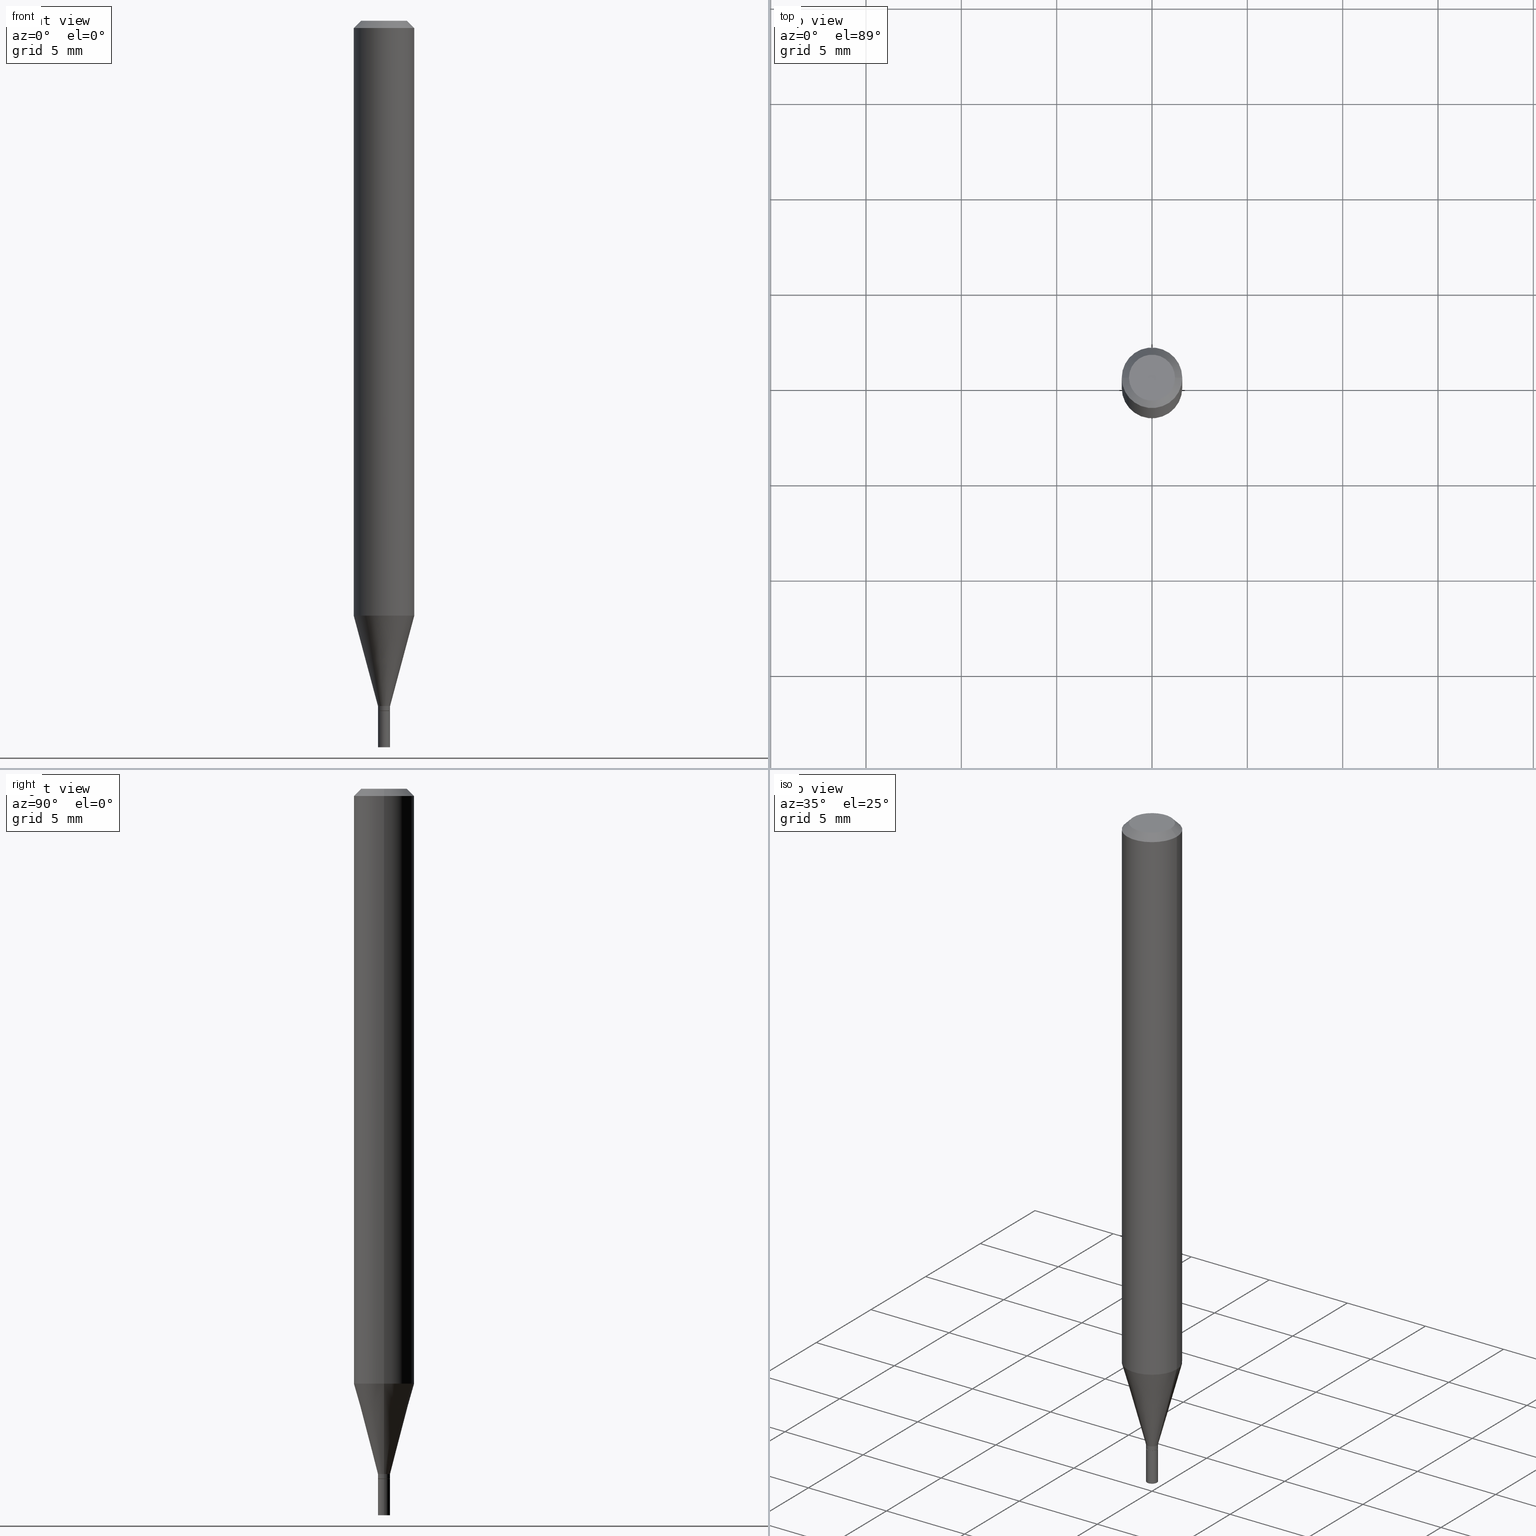
[diagram: canonical four-view strip — front | top / right | iso, engineering-drawing reading convention]
A machine part, canonical four-view strip (front | top / right | iso — engineering-drawing reading convention). The complete STEP part file that produces these views, byte-faithful:
ISO-10303-21;
HEADER;
FILE_DESCRIPTION (( 'STEP AP203' ),
    '1' );
FILE_NAME ('02295.STEP',
    '2024-03-18T20:02:27',
    ( '' ),
    ( '' ),
    'SwSTEP 2.0',
    'SolidWorks 2023',
    '' );
FILE_SCHEMA (( 'CONFIG_CONTROL_DESIGN' ));
ENDSEC;

DATA;
#1 = EDGE_LOOP ( 'NONE', ( #147, #62, #328, #219 ) ) ;
#2 = CARTESIAN_POINT ( 'NONE',  ( 8.728703347111317935E-17, 0.01249999999999502551, -1.425000000000000266 ) ) ;
#3 = PRODUCT_DEFINITION ( 'UNKNOWN', '', #61, #282 ) ;
#4 = CC_DESIGN_PERSON_AND_ORGANIZATION_ASSIGNMENT ( #235, #112, ( #61 ) ) ;
#5 = EDGE_CURVE ( 'NONE', #49, #14, #333, .T. ) ;
#6 = EDGE_LOOP ( 'NONE', ( #271, #164, #304, #22 ) ) ;
#7 = DIRECTION ( 'NONE',  ( 1.000000000000000000, -6.982962677686258822E-15, 0.000000000000000000 ) ) ;
#8 = VECTOR ( 'NONE', #121, 39.37007874015748143 ) ;
#9 = DIRECTION ( 'NONE',  ( 0.000000000000000000, 0.000000000000000000, 1.000000000000000000 ) ) ;
#10 = ORIENTED_EDGE ( 'NONE', *, *, #415, .F. ) ;
#11 = MECHANICAL_CONTEXT ( 'NONE', #310, 'mechanical' ) ;
#12 = LINE ( 'NONE', #30, #448 ) ;
#13 = PRODUCT_DEFINITION_SHAPE ( 'NONE', 'NONE',  #3 ) ;
#14 = VERTEX_POINT ( 'NONE', #153 ) ;
#15 = SECURITY_CLASSIFICATION_LEVEL ( 'unclassified' ) ;
#16 =( LENGTH_UNIT ( ) NAMED_UNIT ( * ) SI_UNIT ( $, .METRE. ) );
#17 = EDGE_CURVE ( 'NONE', #154, #258, #155, .T. ) ;
#18 = ORIENTED_EDGE ( 'NONE', *, *, #382, .F. ) ;
#19 = ORIENTED_EDGE ( 'NONE', *, *, #243, .F. ) ;
#20 = EDGE_CURVE ( 'NONE', #76, #345, #414, .T. ) ;
#21 = AXIS2_PLACEMENT_3D ( 'NONE', #65, #203, #437 ) ;
#22 = ORIENTED_EDGE ( 'NONE', *, *, #316, .F. ) ;
#23 = FACE_OUTER_BOUND ( 'NONE', #6, .T. ) ;
#24 = CARTESIAN_POINT ( 'NONE',  ( 0.06250000000000000000, -4.811533449433679005E-16, -0.01499999999999999944 ) ) ;
#25 = CIRCLE ( 'NONE', #192, 0.01249999999999992437 ) ;
#26 = LINE ( 'NONE', #126, #421 ) ;
#27 = EDGE_CURVE ( 'NONE', #222, #14, #456, .T. ) ;
#28 = EDGE_CURVE ( 'NONE', #252, #375, #125, .T. ) ;
#29 = AXIS2_PLACEMENT_3D ( 'NONE', #223, #168, #171 ) ;
#30 = CARTESIAN_POINT ( 'NONE',  ( -0.01249999999999992437, 8.881784197001198582E-17, -6.148668862818594743E-31 ) ) ;
#31 = DIRECTION ( 'NONE',  ( -0.7071067811865676678, 2.468850131082468081E-15, -0.7071067811865273667 ) ) ;
#32 = PLANE ( 'NONE',  #140 ) ;
#33 = EDGE_LOOP ( 'NONE', ( #364, #18 ) ) ;
#34 = DIRECTION ( 'NONE',  ( 1.000000000000000000, -6.982962677686266711E-15, 4.876176775795935793E-29 ) ) ;
#35 = AXIS2_PLACEMENT_3D ( 'NONE', #236, #383, #54 ) ;
#36 = EDGE_CURVE ( 'NONE', #222, #149, #117, .T. ) ;
#37 = AXIS2_PLACEMENT_3D ( 'NONE', #186, #224, #423 ) ;
#38 = APPROVAL_PERSON_ORGANIZATION ( #87, #377, #279 ) ;
#39 = CARTESIAN_POINT ( 'NONE',  ( 0.000000000000000000, 0.000000000000000000, 0.000000000000000000 ) ) ;
#40 = DIRECTION ( 'NONE',  ( -2.445468806185136597E-29, 3.491481338843145583E-15, 1.000000000000000000 ) ) ;
#41 = ORIENTED_EDGE ( 'NONE', *, *, #53, .T. ) ;
#42 = ORIENTED_EDGE ( 'NONE', *, *, #395, .T. ) ;
#43 = DIRECTION ( 'NONE',  ( 1.000000000000000000, -6.982962677686262766E-15, 0.000000000000000000 ) ) ;
#44 = DIRECTION ( 'NONE',  ( 1.000000000000000000, -6.982962677686266711E-15, 4.876176775795935793E-29 ) ) ;
#45 = CARTESIAN_POINT ( 'NONE',  ( 0.01200000000000000198, -5.059156459983718502E-15, -1.425000000000000266 ) ) ;
#46 = DIRECTION ( 'NONE',  ( -0.7071067811865642261, 7.493145998870414114E-15, 0.7071067811865309194 ) ) ;
#47 = FACE_OUTER_BOUND ( 'NONE', #96, .T. ) ;
#48 = DIRECTION ( 'NONE',  ( 1.000000000000000000, -6.982962677686294321E-15, 0.000000000000000000 ) ) ;
#49 = VERTEX_POINT ( 'NONE', #230 ) ;
#50 = ORIENTED_EDGE ( 'NONE', *, *, #58, .T. ) ;
#51 = CARTESIAN_POINT ( 'NONE',  ( -0.06250000000000000000, -1.726560303666755986E-15, -0.01499999999999999944 ) ) ;
#52 = CIRCLE ( 'NONE', #114, 0.01200000000000000198 ) ;
#53 = EDGE_CURVE ( 'NONE', #85, #428, #240, .T. ) ;
#54 = DIRECTION ( 'NONE',  ( 1.000000000000000000, -6.982962677686267499E-15, 4.876176775795935793E-29 ) ) ;
#55 = DIRECTION ( 'NONE',  ( -2.445468806185136597E-29, 3.491481338843145583E-15, 1.000000000000000000 ) ) ;
#56 = DIRECTION ( 'NONE',  ( -2.445468806185136597E-29, 3.491481338843145583E-15, 1.000000000000000000 ) ) ;
#57 = ORIENTED_EDGE ( 'NONE', *, *, #395, .F. ) ;
#58 = EDGE_CURVE ( 'NONE', #49, #363, #52, .T. ) ;
#59 = CIRCLE ( 'NONE', #233, 0.01250000000000000069 ) ;
#60 = ORIENTED_EDGE ( 'NONE', *, *, #162, .F. ) ;
#61 = PRODUCT_DEFINITION_FORMATION_WITH_SPECIFIED_SOURCE ( 'ANY', '', #116, .NOT_KNOWN. ) ;
#62 = ORIENTED_EDGE ( 'NONE', *, *, #417, .T. ) ;
#63 = DIRECTION ( 'NONE',  ( 1.000000000000000000, -6.982962677686265922E-15, 4.876176775795935793E-29 ) ) ;
#64 = ORIENTED_EDGE ( 'NONE', *, *, #27, .T. ) ;
#65 = CARTESIAN_POINT ( 'NONE',  ( 3.668203209277705088E-31, -5.237222008264718399E-17, -0.01499999999999999944 ) ) ;
#66 = PERSON_AND_ORGANIZATION ( #340, #287 ) ;
#67 = ORIENTED_EDGE ( 'NONE', *, *, #384, .T. ) ;
#68 = CARTESIAN_POINT ( 'NONE',  ( -0.06250000000000001388, -3.844837597100926719E-15, -1.228397459621556109 ) ) ;
#69 = AXIS2_PLACEMENT_3D ( 'NONE', #393, #198, #244 ) ;
#70 = CC_DESIGN_APPROVAL ( #377, ( #61 ) ) ;
#71 = PRODUCT_RELATED_PRODUCT_CATEGORY ( 'detail', '', ( #116 ) ) ;
#72 = ORIENTED_EDGE ( 'NONE', *, *, #28, .F. ) ;
#73 = CARTESIAN_POINT ( 'NONE',  ( 3.460338360751968441E-29, -4.940446094463050737E-15, -1.415000000000000036 ) ) ;
#74 = PERSON_AND_ORGANIZATION_ROLE ( 'design_supplier' ) ;
#75 = CARTESIAN_POINT ( 'NONE',  ( 3.484793048813820547E-29, -4.975360907851483175E-15, -1.425000000000000266 ) ) ;
#76 = VERTEX_POINT ( 'NONE', #51 ) ;
#77 = CYLINDRICAL_SURFACE ( 'NONE', #93, 0.06250000000000000000 ) ;
#78 = APPROVAL_ROLE ( '' ) ;
#79 = DIRECTION ( 'NONE',  ( -2.445468806185136597E-29, 3.491481338843145583E-15, 1.000000000000000000 ) ) ;
#80 = CIRCLE ( 'NONE', #397, 0.06250000000000000000 ) ;
#81 = LOCAL_TIME ( 16, 2, 27.00000000000000000, #103 ) ;
#82 = DIRECTION ( 'NONE',  ( 1.000000000000000000, -6.982962677686250144E-15, 0.000000000000000000 ) ) ;
#83 = CARTESIAN_POINT ( 'NONE',  ( 0.000000000000000000, 0.000000000000000000, 0.000000000000000000 ) ) ;
#84 = ORIENTED_EDGE ( 'NONE', *, *, #239, .T. ) ;
#85 = VERTEX_POINT ( 'NONE', #278 ) ;
#86 = ORIENTED_EDGE ( 'NONE', *, *, #188, .T. ) ;
#87 = PERSON_AND_ORGANIZATION ( #340, #287 ) ;
#88 = EDGE_CURVE ( 'NONE', #375, #253, #388, .T. ) ;
#89 = AXIS2_PLACEMENT_3D ( 'NONE', #127, #353, #248 ) ;
#90 = DIRECTION ( 'NONE',  ( 1.000000000000000000, -6.982962677686294321E-15, 0.000000000000000000 ) ) ;
#91 = CARTESIAN_POINT ( 'NONE',  ( 3.483570314410727746E-29, -4.973615167182062460E-15, -1.424500000000000322 ) ) ;
#92 = CARTESIAN_POINT ( 'NONE',  ( 3.004007669101581496E-29, -4.288926806950990124E-15, -1.228397459621556109 ) ) ;
#93 = AXIS2_PLACEMENT_3D ( 'NONE', #343, #213, #34 ) ;
#94 = FACE_OUTER_BOUND ( 'NONE', #296, .T. ) ;
#95 = CARTESIAN_POINT ( 'NONE',  ( 0.01250000000000000069, -8.728703347107834621E-17, 6.095220969744920617E-31 ) ) ;
#96 = EDGE_LOOP ( 'NONE', ( #334, #86, #19, #392 ) ) ;
#97 = PLANE ( 'NONE',  #167 ) ;
#98 = APPROVAL_DATE_TIME ( #211, #182 ) ;
#99 = CYLINDRICAL_SURFACE ( 'NONE', #205, 0.01249999999999992437 ) ;
#100 = EDGE_CURVE ( 'NONE', #85, #345, #229, .T. ) ;
#101 = CARTESIAN_POINT ( 'NONE',  ( -0.01250000000000000069, -5.017473616088089257E-15, -1.425000000000000266 ) ) ;
#102 = FACE_OUTER_BOUND ( 'NONE', #1, .T. ) ;
#103 = COORDINATED_UNIVERSAL_TIME_OFFSET ( 5, 0, .BEHIND. ) ;
#104 = EDGE_LOOP ( 'NONE', ( #64, #113, #60, #440 ) ) ;
#105 = DIRECTION ( 'NONE',  ( 1.000000000000000000, -6.982962677686266711E-15, 0.000000000000000000 ) ) ;
#106 = ORIENTED_EDGE ( 'NONE', *, *, #100, .T. ) ;
#107 = CARTESIAN_POINT ( 'NONE',  ( 0.01249999999999992437, -5.060902200653140005E-15, -1.424500000000000322 ) ) ;
#108 = DIRECTION ( 'NONE',  ( -2.445468806185136597E-29, 3.491481338843145583E-15, 1.000000000000000000 ) ) ;
#109 = DIRECTION ( 'NONE',  ( -2.445468806185136597E-29, 3.491481338843145583E-15, 1.000000000000000000 ) ) ;
#110 = EDGE_CURVE ( 'NONE', #206, #253, #419, .T. ) ;
#111 = ORIENTED_EDGE ( 'NONE', *, *, #36, .T. ) ;
#112 = PERSON_AND_ORGANIZATION_ROLE ( 'creator' ) ;
#113 = ORIENTED_EDGE ( 'NONE', *, *, #332, .T. ) ;
#114 = AXIS2_PLACEMENT_3D ( 'NONE', #350, #281, #82 ) ;
#115 = AXIS2_PLACEMENT_3D ( 'NONE', #92, #457, #124 ) ;
#116 = PRODUCT ( '02295', '02295', '', ( #11 ) ) ;
#117 = LINE ( 'NONE', #187, #8 ) ;
#118 = CARTESIAN_POINT ( 'NONE',  ( 0.01200000000000000198, -5.059156459983718502E-15, -1.425000000000000266 ) ) ;
#119 = AXIS2_PLACEMENT_3D ( 'NONE', #441, #265, #220 ) ;
#120 = AXIS2_PLACEMENT_3D ( 'NONE', #306, #79, #329 ) ;
#121 = DIRECTION ( 'NONE',  ( -2.445468806185136877E-29, 3.491481338843145188E-15, 1.000000000000000000 ) ) ;
#122 = DIRECTION ( 'NONE',  ( 1.000000000000000000, -6.982962677686266711E-15, 0.000000000000000000 ) ) ;
#123 = DIRECTION ( 'NONE',  ( -2.445468806185136597E-29, 3.491481338843145583E-15, 1.000000000000000000 ) ) ;
#124 = DIRECTION ( 'NONE',  ( 1.000000000000000000, -6.982962677686262766E-15, 0.000000000000000000 ) ) ;
#125 = LINE ( 'NONE', #95, #346 ) ;
#126 = CARTESIAN_POINT ( 'NONE',  ( 0.06250000000000000000, -4.364351673553916694E-16, 3.047610484872459871E-30 ) ) ;
#127 = CARTESIAN_POINT ( 'NONE',  ( 3.668203209277704895E-29, -5.237222008264718177E-15, -1.500000000000000222 ) ) ;
#128 = ADVANCED_FACE ( 'NONE', ( #322 ), #166, .T. ) ;
#129 = CARTESIAN_POINT ( 'NONE',  ( -0.06250000000000000000, 3.840629472727444916E-16, -0.01499999999999999944 ) ) ;
#130 = VECTOR ( 'NONE', #376, 39.37007874015748143 ) ;
#131 = ADVANCED_BREP_SHAPE_REPRESENTATION ( '02295', ( #442, #288, #163 ), #277 ) ;
#132 = CARTESIAN_POINT ( 'NONE',  ( 3.668203209277705088E-31, -5.237222008264718399E-17, -0.01499999999999999944 ) ) ;
#133 = APPROVAL_DATE_TIME ( #465, #377 ) ;
#134 = EDGE_LOOP ( 'NONE', ( #273, #250, #199, #207 ) ) ;
#135 = DIRECTION ( 'NONE',  ( -1.000000000000000000, 6.982962677686265922E-15, -4.876176775795935793E-29 ) ) ;
#136 = CARTESIAN_POINT ( 'NONE',  ( 3.316907271900976096E-16, 0.04749999999999999362, -5.911810482194846144E-16 ) ) ;
#137 = EDGE_LOOP ( 'NONE', ( #181, #50, #344, #369 ) ) ;
#138 = DIRECTION ( 'NONE',  ( -2.445468806185136877E-29, 3.491481338843145188E-15, 1.000000000000000000 ) ) ;
#139 = ADVANCED_FACE ( 'NONE', ( #102 ), #260, .T. ) ;
#140 = AXIS2_PLACEMENT_3D ( 'NONE', #431, #146, #266 ) ;
#141 = AXIS2_PLACEMENT_3D ( 'NONE', #246, #391, #195 ) ;
#142 = DIRECTION ( 'NONE',  ( 1.000000000000000000, 0.000000000000000000, 0.000000000000000000 ) ) ;
#143 = APPLICATION_CONTEXT ( 'configuration controlled 3d designs of mechanical parts and assemblies' ) ;
#144 = ORIENTED_EDGE ( 'NONE', *, *, #110, .F. ) ;
#145 = CARTESIAN_POINT ( 'NONE',  ( -0.01249999999999992437, -4.348232924796983019E-15, -1.415000000000000036 ) ) ;
#146 = DIRECTION ( 'NONE',  ( -2.438088387897960049E-29, 3.491481338843145188E-15, 1.000000000000000000 ) ) ;
#147 = ORIENTED_EDGE ( 'NONE', *, *, #188, .F. ) ;
#148 = PERSON_AND_ORGANIZATION ( #340, #287 ) ;
#149 = VERTEX_POINT ( 'NONE', #339 ) ;
#150 = CC_DESIGN_APPROVAL ( #285, ( #314 ) ) ;
#151 = EDGE_CURVE ( 'NONE', #252, #206, #59, .T. ) ;
#152 = APPLICATION_PROTOCOL_DEFINITION ( 'international standard', 'config_control_design', 1994, #310 ) ;
#153 = CARTESIAN_POINT ( 'NONE',  ( -0.01249999999999992437, -4.884797325212050253E-15, -1.424500000000000322 ) ) ;
#154 = VERTEX_POINT ( 'NONE', #145 ) ;
#155 = LINE ( 'NONE', #385, #299 ) ;
#156 = CARTESIAN_POINT ( 'NONE',  ( -0.01250000000000000069, 8.881784197001252816E-17, -6.148668862818633278E-31 ) ) ;
#157 = CIRCLE ( 'NONE', #115, 0.06250000000000000000 ) ;
#158 = DATE_AND_TIME ( #326, #81 ) ;
#159 = DIRECTION ( 'NONE',  ( -0.2588190451025211281, 5.211531920934548675E-15, 0.9659258262890682012 ) ) ;
#160 =( NAMED_UNIT ( * ) SI_UNIT ( $, .STERADIAN. ) SOLID_ANGLE_UNIT ( ) );
#161 = AXIS2_PLACEMENT_3D ( 'NONE', #254, #401, #43 ) ;
#162 = EDGE_CURVE ( 'NONE', #149, #154, #25, .T. ) ;
#163 = AXIS2_PLACEMENT_3D ( 'NONE', #39, #9, #142 ) ;
#164 = ORIENTED_EDGE ( 'NONE', *, *, #17, .T. ) ;
#165 = DIRECTION ( 'NONE',  ( -2.445468806185136877E-29, 3.491481338843145188E-15, 1.000000000000000000 ) ) ;
#166 = CYLINDRICAL_SURFACE ( 'NONE', #351, 0.01250000000000000069 ) ;
#167 = AXIS2_PLACEMENT_3D ( 'NONE', #251, #398, #63 ) ;
#168 = DIRECTION ( 'NONE',  ( -2.445468806185136597E-29, 3.491481338843145583E-15, 1.000000000000000000 ) ) ;
#169 = LOCAL_TIME ( 16, 2, 27.00000000000000000, #177 ) ;
#170 = EDGE_LOOP ( 'NONE', ( #362, #10, #67, #212 ) ) ;
#171 = DIRECTION ( 'NONE',  ( 1.000000000000000000, -6.982962677686250144E-15, 0.000000000000000000 ) ) ;
#172 = DIRECTION ( 'NONE',  ( 1.000000000000000000, -6.982962677686250144E-15, 0.000000000000000000 ) ) ;
#173 = EDGE_LOOP ( 'NONE', ( #238, #41 ) ) ;
#174 = ORIENTED_EDGE ( 'NONE', *, *, #317, .F. ) ;
#175 = CARTESIAN_POINT ( 'NONE',  ( 0.000000000000000000, 0.000000000000000000, 0.000000000000000000 ) ) ;
#176 = AXIS2_PLACEMENT_3D ( 'NONE', #75, #109, #172 ) ;
#177 = COORDINATED_UNIVERSAL_TIME_OFFSET ( 5, 0, .BEHIND. ) ;
#178 = EDGE_LOOP ( 'NONE', ( #144, #373, #300, #57 ) ) ;
#179 = CARTESIAN_POINT ( 'NONE',  ( 3.460338360751968441E-29, -4.940446094463050737E-15, -1.415000000000000036 ) ) ;
#180 = CARTESIAN_POINT ( 'NONE',  ( 3.484793048813820547E-29, -4.975360907851483175E-15, -1.425000000000000266 ) ) ;
#181 = ORIENTED_EDGE ( 'NONE', *, *, #5, .F. ) ;
#182 = APPROVAL ( #324, 'UNSPECIFIED' ) ;
#183 = ADVANCED_FACE ( 'NONE', ( #464 ), #99, .T. ) ;
#184 = CONICAL_SURFACE ( 'NONE', #176, 0.01200000000000000198, 0.7853981633974718157 ) ;
#185 = CIRCLE ( 'NONE', #347, 0.01250000000000000069 ) ;
#186 = CARTESIAN_POINT ( 'NONE',  ( 2.080290297812910479E-44, -2.970103211220577886E-30, -8.506713692488703374E-16 ) ) ;
#187 = CARTESIAN_POINT ( 'NONE',  ( 0.01249999999999992437, -8.728703347107781619E-17, 6.095220969744882957E-31 ) ) ;
#188 = EDGE_CURVE ( 'NONE', #258, #76, #370, .T. ) ;
#189 = CARTESIAN_POINT ( 'NONE',  ( 0.01250000000000000069, -5.062647941322562298E-15, -1.425000000000000266 ) ) ;
#190 = DIRECTION ( 'NONE',  ( 1.000000000000000000, -6.982962677686258822E-15, 0.000000000000000000 ) ) ;
#191 = CLOSED_SHELL ( 'NONE', ( #183, #349, #217, #234, #378, #302, #139, #210, #418, #319, #307, #367 ) ) ;
#192 = AXIS2_PLACEMENT_3D ( 'NONE', #179, #331, #7 ) ;
#193 = CARTESIAN_POINT ( 'NONE',  ( 3.668203209277705088E-31, -5.237222008264718399E-17, -0.01499999999999999944 ) ) ;
#194 = DIRECTION ( 'NONE',  ( 1.000000000000000000, -6.982962677686258822E-15, 0.000000000000000000 ) ) ;
#195 = DIRECTION ( 'NONE',  ( 1.000000000000000000, -6.982962677686258822E-15, 0.000000000000000000 ) ) ;
#196 = CC_DESIGN_PERSON_AND_ORGANIZATION_ASSIGNMENT ( #396, #432, ( #116 ) ) ;
#197 = AXIS2_PLACEMENT_3D ( 'NONE', #193, #123, #122 ) ;
#198 = DIRECTION ( 'NONE',  ( -2.445468806185136597E-29, 3.491481338843145583E-15, 1.000000000000000000 ) ) ;
#199 = ORIENTED_EDGE ( 'NONE', *, *, #316, .T. ) ;
#200 = COORDINATED_UNIVERSAL_TIME_OFFSET ( 5, 0, .BEHIND. ) ;
#201 = FACE_OUTER_BOUND ( 'NONE', #33, .T. ) ;
#202 = DIRECTION ( 'NONE',  ( 2.438088387897960049E-29, -3.491481338843145188E-15, -1.000000000000000000 ) ) ;
#203 = DIRECTION ( 'NONE',  ( 2.445468806185136597E-29, -3.491481338843145583E-15, -1.000000000000000000 ) ) ;
#204 = PERSON_AND_ORGANIZATION ( #340, #287 ) ;
#205 = AXIS2_PLACEMENT_3D ( 'NONE', #175, #429, #208 ) ;
#206 = VERTEX_POINT ( 'NONE', #301 ) ;
#207 = ORIENTED_EDGE ( 'NONE', *, *, #417, .F. ) ;
#208 = DIRECTION ( 'NONE',  ( 1.000000000000000000, -6.982962677686267499E-15, 4.876176775795935793E-29 ) ) ;
#209 = DATE_AND_TIME ( #214, #354 ) ;
#210 = ADVANCED_FACE ( 'NONE', ( #408 ), #268, .T. ) ;
#211 = DATE_AND_TIME ( #410, #361 ) ;
#212 = ORIENTED_EDGE ( 'NONE', *, *, #20, .T. ) ;
#213 = DIRECTION ( 'NONE',  ( -2.445468806185136597E-29, 3.491481338843145583E-15, 1.000000000000000000 ) ) ;
#214 = CALENDAR_DATE ( 2024, 18, 3 ) ;
#215 = DIRECTION ( 'NONE',  ( -2.445468806185136597E-29, 3.491481338843145583E-15, 1.000000000000000000 ) ) ;
#216 = LINE ( 'NONE', #438, #330 ) ;
#217 = ADVANCED_FACE ( 'NONE', ( #357 ), #424, .T. ) ;
#218 = CC_DESIGN_PERSON_AND_ORGANIZATION_ASSIGNMENT ( #262, #226, ( #314 ) ) ;
#219 = ORIENTED_EDGE ( 'NONE', *, *, #20, .F. ) ;
#220 = DIRECTION ( 'NONE',  ( -1.000000000000000000, 6.982962677686266711E-15, 0.000000000000000000 ) ) ;
#221 = DIRECTION ( 'NONE',  ( 0.7071067811865642261, -2.468850131082431399E-15, 0.7071067811865309194 ) ) ;
#222 = VERTEX_POINT ( 'NONE', #107 ) ;
#223 = CARTESIAN_POINT ( 'NONE',  ( 3.484793048813820547E-29, -4.975360907851483175E-15, -1.425000000000000266 ) ) ;
#224 = DIRECTION ( 'NONE',  ( -2.445468806185136597E-29, 3.491481338843145583E-15, 1.000000000000000000 ) ) ;
#225 = AXIS2_PLACEMENT_3D ( 'NONE', #180, #275, #90 ) ;
#226 = PERSON_AND_ORGANIZATION_ROLE ( 'classification_officer' ) ;
#227 = CIRCLE ( 'NONE', #141, 0.01249999999999992437 ) ;
#228 = ORIENTED_EDGE ( 'NONE', *, *, #450, .F. ) ;
#229 = LINE ( 'NONE', #24, #372 ) ;
#230 = CARTESIAN_POINT ( 'NONE',  ( -0.01200000000000000198, -4.887446552386159876E-15, -1.425000000000000266 ) ) ;
#231 = ORIENTED_EDGE ( 'NONE', *, *, #58, .F. ) ;
#232 = APPROVAL_STATUS ( 'not_yet_approved' ) ;
#233 = AXIS2_PLACEMENT_3D ( 'NONE', #443, #108, #263 ) ;
#234 = ADVANCED_FACE ( 'NONE', ( #47 ), #77, .T. ) ;
#235 = PERSON_AND_ORGANIZATION ( #340, #287 ) ;
#236 = CARTESIAN_POINT ( 'NONE',  ( 0.000000000000000000, 0.000000000000000000, 0.000000000000000000 ) ) ;
#237 = DIRECTION ( 'NONE',  ( 1.000000000000000000, -6.982962677686267499E-15, 4.876176775795936353E-29 ) ) ;
#238 = ORIENTED_EDGE ( 'NONE', *, *, #415, .T. ) ;
#239 = EDGE_CURVE ( 'NONE', #363, #49, #286, .T. ) ;
#240 = CIRCLE ( 'NONE', #249, 0.04749999999999999362 ) ;
#241 = VECTOR ( 'NONE', #221, 39.37007874015748143 ) ;
#242 = DIRECTION ( 'NONE',  ( -2.445468806185136597E-29, 3.491481338843145583E-15, 1.000000000000000000 ) ) ;
#243 = EDGE_CURVE ( 'NONE', #345, #76, #80, .T. ) ;
#244 = DIRECTION ( 'NONE',  ( 1.000000000000000000, -6.982962677686250144E-15, 0.000000000000000000 ) ) ;
#245 = DIRECTION ( 'NONE',  ( -2.445468806185136877E-29, 3.491481338843145188E-15, 1.000000000000000000 ) ) ;
#246 = CARTESIAN_POINT ( 'NONE',  ( 3.460338360751968441E-29, -4.940446094463050737E-15, -1.415000000000000036 ) ) ;
#247 = EDGE_LOOP ( 'NONE', ( #84, #447, #434, #174 ) ) ;
#248 = DIRECTION ( 'NONE',  ( 1.000000000000000000, -6.982962677686294321E-15, 0.000000000000000000 ) ) ;
#249 = AXIS2_PLACEMENT_3D ( 'NONE', #455, #270, #453 ) ;
#250 = ORIENTED_EDGE ( 'NONE', *, *, #450, .T. ) ;
#251 = CARTESIAN_POINT ( 'NONE',  ( 3.484793048813820547E-29, -4.975360907851483175E-15, -1.425000000000000266 ) ) ;
#252 = VERTEX_POINT ( 'NONE', #293 ) ;
#253 = VERTEX_POINT ( 'NONE', #101 ) ;
#254 = CARTESIAN_POINT ( 'NONE',  ( 3.004007669101581496E-29, -4.288926806950990124E-15, -1.228397459621556109 ) ) ;
#255 = EDGE_CURVE ( 'NONE', #338, #258, #379, .T. ) ;
#256 = CARTESIAN_POINT ( 'NONE',  ( 0.000000000000000000, 0.000000000000000000, 0.000000000000000000 ) ) ;
#257 = AXIS2_PLACEMENT_3D ( 'NONE', #386, #56, #190 ) ;
#258 = VERTEX_POINT ( 'NONE', #68 ) ;
#259 = FACE_OUTER_BOUND ( 'NONE', #416, .T. ) ;
#260 = CYLINDRICAL_SURFACE ( 'NONE', #276, 0.06250000000000000000 ) ;
#261 = EDGE_LOOP ( 'NONE', ( #342, #231 ) ) ;
#262 = PERSON_AND_ORGANIZATION ( #340, #287 ) ;
#263 = DIRECTION ( 'NONE',  ( 1.000000000000000000, -6.982962677686294321E-15, 0.000000000000000000 ) ) ;
#264 = ORIENTED_EDGE ( 'NONE', *, *, #88, .F. ) ;
#265 = DIRECTION ( 'NONE',  ( 2.445468806185136597E-29, -3.491481338843145583E-15, -1.000000000000000000 ) ) ;
#266 = DIRECTION ( 'NONE',  ( 1.000000000000000000, -6.982962677686265922E-15, 4.876176775795935793E-29 ) ) ;
#267 = ORIENTED_EDGE ( 'NONE', *, *, #53, .F. ) ;
#268 = CONICAL_SURFACE ( 'NONE', #21, 0.06250000000000000000, 0.7853981633974768117 ) ;
#269 = APPROVAL_PERSON_ORGANIZATION ( #148, #285, #78 ) ;
#270 = DIRECTION ( 'NONE',  ( -2.445468806185136597E-29, 3.491481338843145583E-15, 1.000000000000000000 ) ) ;
#271 = ORIENTED_EDGE ( 'NONE', *, *, #162, .T. ) ;
#272 = DIRECTION ( 'NONE',  ( 0.7071067811865676678, -7.319954787623323887E-15, -0.7071067811865273667 ) ) ;
#273 = ORIENTED_EDGE ( 'NONE', *, *, #17, .F. ) ;
#274 = LENGTH_MEASURE_WITH_UNIT ( LENGTH_MEASURE( 0.02539999999999999897 ), #16 );
#275 = DIRECTION ( 'NONE',  ( -2.445468806185136597E-29, 3.491481338843145583E-15, 1.000000000000000000 ) ) ;
#276 = AXIS2_PLACEMENT_3D ( 'NONE', #256, #215, #44 ) ;
#277 =( GEOMETRIC_REPRESENTATION_CONTEXT ( 3 ) GLOBAL_UNCERTAINTY_ASSIGNED_CONTEXT ( ( #321 ) ) GLOBAL_UNIT_ASSIGNED_CONTEXT ( ( #315, #348, #160 ) ) REPRESENTATION_CONTEXT ( 'NONE', 'WORKASPACE' ) );
#278 = CARTESIAN_POINT ( 'NONE',  ( 0.04749999999999999362, -4.035134999187593414E-16, -8.506713692488677736E-16 ) ) ;
#279 = APPROVAL_ROLE ( '' ) ;
#280 = FACE_OUTER_BOUND ( 'NONE', #247, .T. ) ;
#281 = DIRECTION ( 'NONE',  ( -2.445468806185136597E-29, 3.491481338843145583E-15, 1.000000000000000000 ) ) ;
#282 = DESIGN_CONTEXT ( 'detailed design', #143, 'design' ) ;
#283 = ADVANCED_FACE ( 'NONE', ( #259 ), #335, .F. ) ;
#284 = FACE_OUTER_BOUND ( 'NONE', #173, .T. ) ;
#285 = APPROVAL ( #294, 'UNSPECIFIED' ) ;
#286 = CIRCLE ( 'NONE', #29, 0.01200000000000000198 ) ;
#287 = ORGANIZATION ( 'UNSPECIFIED', 'UNSPECIFIED', '' ) ;
#288 = MANIFOLD_SOLID_BREP ( 'Body-Move/Copy2[2]', #191 ) ;
#289 = AXIS2_PLACEMENT_3D ( 'NONE', #73, #55, #318 ) ;
#290 = AXIS2_PLACEMENT_3D ( 'NONE', #136, #202, #368 ) ;
#291 = EDGE_LOOP ( 'NONE', ( #267, #106, #433, #308 ) ) ;
#292 = PERSON_AND_ORGANIZATION ( #340, #287 ) ;
#293 = CARTESIAN_POINT ( 'NONE',  ( 0.01250000000000000069, -5.324509041735797299E-15, -1.500000000000000222 ) ) ;
#294 = APPROVAL_STATUS ( 'not_yet_approved' ) ;
#295 = DIMENSIONAL_EXPONENTS ( 1.000000000000000000, 0.000000000000000000, 0.000000000000000000, 0.000000000000000000, 0.000000000000000000, 0.000000000000000000, 0.000000000000000000 ) ;
#296 = EDGE_LOOP ( 'NONE', ( #407, #445, #111, #228 ) ) ;
#297 = FACE_OUTER_BOUND ( 'NONE', #134, .T. ) ;
#298 = CALENDAR_DATE ( 2024, 18, 3 ) ;
#299 = VECTOR ( 'NONE', #159, 39.37007874015748143 ) ;
#300 = ORIENTED_EDGE ( 'NONE', *, *, #28, .T. ) ;
#301 = CARTESIAN_POINT ( 'NONE',  ( -0.01250000000000000069, -5.017473616088089257E-15, -1.500000000000000222 ) ) ;
#302 = ADVANCED_FACE ( 'NONE', ( #297 ), #403, .T. ) ;
#303 = DIRECTION ( 'NONE',  ( 1.000000000000000000, -6.982962677686267499E-15, 4.876176775795936353E-29 ) ) ;
#304 = ORIENTED_EDGE ( 'NONE', *, *, #255, .F. ) ;
#305 = CALENDAR_DATE ( 2024, 18, 3 ) ;
#306 = CARTESIAN_POINT ( 'NONE',  ( 3.483570314410727746E-29, -4.973615167182062460E-15, -1.424500000000000322 ) ) ;
#307 = ADVANCED_FACE ( 'NONE', ( #444 ), #184, .T. ) ;
#308 = ORIENTED_EDGE ( 'NONE', *, *, #384, .F. ) ;
#309 = COORDINATED_UNIVERSAL_TIME_OFFSET ( 5, 0, .BEHIND. ) ;
#310 = APPLICATION_CONTEXT ( 'configuration controlled 3d designs of mechanical parts and assemblies' ) ;
#311 = AXIS2_PLACEMENT_3D ( 'NONE', #83, #40, #237 ) ;
#312 = APPROVAL_PERSON_ORGANIZATION ( #204, #182, #461 ) ;
#313 = ORIENTED_EDGE ( 'NONE', *, *, #88, .T. ) ;
#314 = SECURITY_CLASSIFICATION ( '', '', #15 ) ;
#315 =( CONVERSION_BASED_UNIT ( 'INCH', #274 ) LENGTH_UNIT ( ) NAMED_UNIT ( #295 ) );
#316 = EDGE_CURVE ( 'NONE', #149, #338, #216, .T. ) ;
#317 = EDGE_CURVE ( 'NONE', #363, #222, #336, .T. ) ;
#318 = DIRECTION ( 'NONE',  ( 1.000000000000000000, -6.982962677686258822E-15, 0.000000000000000000 ) ) ;
#319 = ADVANCED_FACE ( 'NONE', ( #425 ), #97, .F. ) ;
#320 = CONICAL_SURFACE ( 'NONE', #69, 0.01200000000000000198, 0.7853981633974718157 ) ;
#321 = UNCERTAINTY_MEASURE_WITH_UNIT (LENGTH_MEASURE( 1.000000000000000082E-05 ), #315, 'distance_accuracy_value', 'NONE');
#322 = FACE_OUTER_BOUND ( 'NONE', #411, .T. ) ;
#323 = CARTESIAN_POINT ( 'NONE',  ( 0.06250000000000000000, -4.888073874380388472E-16, -0.01499999999999999944 ) ) ;
#324 = APPROVAL_STATUS ( 'not_yet_approved' ) ;
#325 = DATE_TIME_ROLE ( 'creation_date' ) ;
#326 = CALENDAR_DATE ( 2024, 18, 3 ) ;
#327 = ADVANCED_FACE ( 'NONE', ( #201 ), #32, .F. ) ;
#328 = ORIENTED_EDGE ( 'NONE', *, *, #381, .T. ) ;
#329 = DIRECTION ( 'NONE',  ( 1.000000000000000000, -6.982962677686258822E-15, 0.000000000000000000 ) ) ;
#330 = VECTOR ( 'NONE', #356, 39.37007874015748143 ) ;
#331 = DIRECTION ( 'NONE',  ( -2.445468806185136597E-29, 3.491481338843145583E-15, 1.000000000000000000 ) ) ;
#332 = EDGE_CURVE ( 'NONE', #14, #154, #12, .T. ) ;
#333 = LINE ( 'NONE', #466, #463 ) ;
#334 = ORIENTED_EDGE ( 'NONE', *, *, #255, .T. ) ;
#335 = PLANE ( 'NONE',  #360 ) ;
#336 = LINE ( 'NONE', #45, #241 ) ;
#337 = FACE_OUTER_BOUND ( 'NONE', #178, .T. ) ;
#338 = VERTEX_POINT ( 'NONE', #352 ) ;
#339 = CARTESIAN_POINT ( 'NONE',  ( 0.01249999999999992437, -5.027733127934128282E-15, -1.415000000000000036 ) ) ;
#340 = PERSON ( 'UNSPECIFIED', 'UNSPECIFIED', 'UNSPECIFIED', ('UNSPECIFIED'), ('UNSPECIFIED'), ('UNSPECIFIED') ) ;
#341 = VECTOR ( 'NONE', #138, 39.37007874015748143 ) ;
#342 = ORIENTED_EDGE ( 'NONE', *, *, #239, .F. ) ;
#343 = CARTESIAN_POINT ( 'NONE',  ( 0.000000000000000000, 0.000000000000000000, 0.000000000000000000 ) ) ;
#344 = ORIENTED_EDGE ( 'NONE', *, *, #317, .T. ) ;
#345 = VERTEX_POINT ( 'NONE', #323 ) ;
#346 = VECTOR ( 'NONE', #245, 39.37007874015748143 ) ;
#347 = AXIS2_PLACEMENT_3D ( 'NONE', #430, #371, #48 ) ;
#348 =( NAMED_UNIT ( * ) PLANE_ANGLE_UNIT ( ) SI_UNIT ( $, .RADIAN. ) );
#349 = ADVANCED_FACE ( 'NONE', ( #280 ), #320, .T. ) ;
#350 = CARTESIAN_POINT ( 'NONE',  ( 3.484793048813820547E-29, -4.975360907851483175E-15, -1.425000000000000266 ) ) ;
#351 = AXIS2_PLACEMENT_3D ( 'NONE', #402, #358, #303 ) ;
#352 = CARTESIAN_POINT ( 'NONE',  ( 0.06250000000000001388, -4.725361974306381794E-15, -1.228397459621556109 ) ) ;
#353 = DIRECTION ( 'NONE',  ( -2.445468806185136597E-29, 3.491481338843145583E-15, 1.000000000000000000 ) ) ;
#354 = LOCAL_TIME ( 16, 2, 27.00000000000000000, #309 ) ;
#355 = DIRECTION ( 'NONE',  ( -2.445468806185136877E-29, 3.491481338843145188E-15, 1.000000000000000000 ) ) ;
#356 = DIRECTION ( 'NONE',  ( 0.2588190451025211281, 1.565188264969623940E-15, 0.9659258262890682012 ) ) ;
#357 = FACE_OUTER_BOUND ( 'NONE', #291, .T. ) ;
#358 = DIRECTION ( 'NONE',  ( -2.445468806185136597E-29, 3.491481338843145583E-15, 1.000000000000000000 ) ) ;
#359 = ADVANCED_FACE ( 'NONE', ( #337 ), #413, .T. ) ;
#360 = AXIS2_PLACEMENT_3D ( 'NONE', #2, #365, #135 ) ;
#361 = LOCAL_TIME ( 16, 2, 27.00000000000000000, #200 ) ;
#362 = ORIENTED_EDGE ( 'NONE', *, *, #100, .F. ) ;
#363 = VERTEX_POINT ( 'NONE', #118 ) ;
#364 = ORIENTED_EDGE ( 'NONE', *, *, #151, .F. ) ;
#365 = DIRECTION ( 'NONE',  ( 2.438088387897960049E-29, -3.491481338843145188E-15, -1.000000000000000000 ) ) ;
#366 = APPROVAL_DATE_TIME ( #209, #285 ) ;
#367 = ADVANCED_FACE ( 'NONE', ( #94 ), #422, .T. ) ;
#368 = DIRECTION ( 'NONE',  ( -1.000000000000000000, 6.982962677686265922E-15, -4.876176775795935793E-29 ) ) ;
#369 = ORIENTED_EDGE ( 'NONE', *, *, #420, .F. ) ;
#370 = LINE ( 'NONE', #435, #341 ) ;
#371 = DIRECTION ( 'NONE',  ( -2.445468806185136597E-29, 3.491481338843145583E-15, 1.000000000000000000 ) ) ;
#372 = VECTOR ( 'NONE', #272, 39.37007874015748143 ) ;
#373 = ORIENTED_EDGE ( 'NONE', *, *, #382, .T. ) ;
#374 = DATE_TIME_ROLE ( 'classification_date' ) ;
#375 = VERTEX_POINT ( 'NONE', #189 ) ;
#376 = DIRECTION ( 'NONE',  ( -2.445468806185136877E-29, 3.491481338843145188E-15, 1.000000000000000000 ) ) ;
#377 = APPROVAL ( #232, 'UNSPECIFIED' ) ;
#378 = ADVANCED_FACE ( 'NONE', ( #23 ), #459, .T. ) ;
#379 = CIRCLE ( 'NONE', #161, 0.06250000000000000000 ) ;
#380 = VECTOR ( 'NONE', #31, 39.37007874015748143 ) ;
#381 = EDGE_CURVE ( 'NONE', #338, #345, #26, .T. ) ;
#382 = EDGE_CURVE ( 'NONE', #206, #252, #426, .T. ) ;
#383 = DIRECTION ( 'NONE',  ( -2.445468806185136597E-29, 3.491481338843145583E-15, 1.000000000000000000 ) ) ;
#384 = EDGE_CURVE ( 'NONE', #428, #76, #462, .T. ) ;
#385 = CARTESIAN_POINT ( 'NONE',  ( -0.01249999999999992437, -4.851628252493038529E-15, -1.415000000000000036 ) ) ;
#386 = CARTESIAN_POINT ( 'NONE',  ( 3.460338360751968441E-29, -4.940446094463050737E-15, -1.415000000000000036 ) ) ;
#387 = COORDINATED_UNIVERSAL_TIME_OFFSET ( 5, 0, .BEHIND. ) ;
#388 = CIRCLE ( 'NONE', #225, 0.01250000000000000069 ) ;
#389 = CC_DESIGN_APPROVAL ( #182, ( #3 ) ) ;
#390 = PLANE ( 'NONE',  #290 ) ;
#391 = DIRECTION ( 'NONE',  ( -2.445468806185136597E-29, 3.491481338843145583E-15, 1.000000000000000000 ) ) ;
#392 = ORIENTED_EDGE ( 'NONE', *, *, #381, .F. ) ;
#393 = CARTESIAN_POINT ( 'NONE',  ( 3.484793048813820547E-29, -4.975360907851483175E-15, -1.425000000000000266 ) ) ;
#394 = CC_DESIGN_PERSON_AND_ORGANIZATION_ASSIGNMENT ( #66, #74, ( #61 ) ) ;
#395 = EDGE_CURVE ( 'NONE', #253, #375, #185, .T. ) ;
#396 = PERSON_AND_ORGANIZATION ( #340, #287 ) ;
#397 = AXIS2_PLACEMENT_3D ( 'NONE', #132, #405, #105 ) ;
#398 = DIRECTION ( 'NONE',  ( -2.438088387897960049E-29, 3.491481338843145188E-15, 1.000000000000000000 ) ) ;
#399 = APPLICATION_PROTOCOL_DEFINITION ( 'international standard', 'config_control_design', 1994, #143 ) ;
#400 = CARTESIAN_POINT ( 'NONE',  ( -0.04749999999999999362, 3.578768372314195715E-16, -8.506713692488727040E-16 ) ) ;
#401 = DIRECTION ( 'NONE',  ( -2.445468806185136597E-29, 3.491481338843145583E-15, 1.000000000000000000 ) ) ;
#402 = CARTESIAN_POINT ( 'NONE',  ( 0.000000000000000000, 0.000000000000000000, 0.000000000000000000 ) ) ;
#403 = CONICAL_SURFACE ( 'NONE', #289, 0.01249999999999992437, 0.2617993877991497964 ) ;
#404 = ORIENTED_EDGE ( 'NONE', *, *, #151, .T. ) ;
#405 = DIRECTION ( 'NONE',  ( -2.445468806185136597E-29, 3.491481338843145583E-15, 1.000000000000000000 ) ) ;
#406 = SHAPE_DEFINITION_REPRESENTATION ( #13, #131 ) ;
#407 = ORIENTED_EDGE ( 'NONE', *, *, #332, .F. ) ;
#408 = FACE_OUTER_BOUND ( 'NONE', #170, .T. ) ;
#409 = CC_DESIGN_DATE_AND_TIME_ASSIGNMENT ( #446, #374, ( #314 ) ) ;
#410 = CALENDAR_DATE ( 2024, 18, 3 ) ;
#411 = EDGE_LOOP ( 'NONE', ( #404, #454, #264, #72 ) ) ;
#412 = CLOSED_SHELL ( 'NONE', ( #128, #327, #359, #283 ) ) ;
#413 = CYLINDRICAL_SURFACE ( 'NONE', #311, 0.01250000000000000069 ) ;
#414 = CIRCLE ( 'NONE', #197, 0.06250000000000000000 ) ;
#415 = EDGE_CURVE ( 'NONE', #428, #85, #460, .T. ) ;
#416 = EDGE_LOOP ( 'NONE', ( #313, #42 ) ) ;
#417 = EDGE_CURVE ( 'NONE', #258, #338, #157, .T. ) ;
#418 = ADVANCED_FACE ( 'NONE', ( #284 ), #390, .F. ) ;
#419 = LINE ( 'NONE', #156, #130 ) ;
#420 = EDGE_CURVE ( 'NONE', #14, #222, #427, .T. ) ;
#421 = VECTOR ( 'NONE', #355, 39.37007874015748143 ) ;
#422 = CYLINDRICAL_SURFACE ( 'NONE', #35, 0.01249999999999992437 ) ;
#423 = DIRECTION ( 'NONE',  ( 1.000000000000000000, -6.982962677686267499E-15, 4.852736867747366768E-29 ) ) ;
#424 = CONICAL_SURFACE ( 'NONE', #119, 0.06250000000000000000, 0.7853981633974768117 ) ;
#425 = FACE_OUTER_BOUND ( 'NONE', #261, .T. ) ;
#426 = CIRCLE ( 'NONE', #89, 0.01250000000000000069 ) ;
#427 = CIRCLE ( 'NONE', #120, 0.01249999999999992437 ) ;
#428 = VERTEX_POINT ( 'NONE', #400 ) ;
#429 = DIRECTION ( 'NONE',  ( -2.445468806185136597E-29, 3.491481338843145583E-15, 1.000000000000000000 ) ) ;
#430 = CARTESIAN_POINT ( 'NONE',  ( 3.484793048813820547E-29, -4.975360907851483175E-15, -1.425000000000000266 ) ) ;
#431 = CARTESIAN_POINT ( 'NONE',  ( 3.576687321579069994E-29, -5.368277968210015545E-15, -1.500000000000000222 ) ) ;
#432 = PERSON_AND_ORGANIZATION_ROLE ( 'design_owner' ) ;
#433 = ORIENTED_EDGE ( 'NONE', *, *, #243, .T. ) ;
#434 = ORIENTED_EDGE ( 'NONE', *, *, #27, .F. ) ;
#435 = CARTESIAN_POINT ( 'NONE',  ( -0.06250000000000000000, 4.440892098500626162E-16, -3.074334431409316114E-30 ) ) ;
#436 = PERSON_AND_ORGANIZATION_ROLE ( 'creator' ) ;
#437 = DIRECTION ( 'NONE',  ( -1.000000000000000000, 6.982962677686266711E-15, 0.000000000000000000 ) ) ;
#438 = CARTESIAN_POINT ( 'NONE',  ( 0.01249999999999992437, -5.027733127934128282E-15, -1.415000000000000036 ) ) ;
#439 = LOCAL_TIME ( 16, 2, 27.00000000000000000, #387 ) ;
#440 = ORIENTED_EDGE ( 'NONE', *, *, #36, .F. ) ;
#441 = CARTESIAN_POINT ( 'NONE',  ( 3.668203209277705088E-31, -5.237222008264718399E-17, -0.01499999999999999944 ) ) ;
#442 = MANIFOLD_SOLID_BREP ( 'Body-Move/Copy2[1]', #412 ) ;
#443 = CARTESIAN_POINT ( 'NONE',  ( 3.668203209277704895E-29, -5.237222008264718177E-15, -1.500000000000000222 ) ) ;
#444 = FACE_OUTER_BOUND ( 'NONE', #137, .T. ) ;
#445 = ORIENTED_EDGE ( 'NONE', *, *, #420, .T. ) ;
#446 = DATE_AND_TIME ( #305, #169 ) ;
#447 = ORIENTED_EDGE ( 'NONE', *, *, #5, .T. ) ;
#448 = VECTOR ( 'NONE', #165, 39.37007874015748143 ) ;
#449 = CC_DESIGN_PERSON_AND_ORGANIZATION_ASSIGNMENT ( #292, #436, ( #3 ) ) ;
#450 = EDGE_CURVE ( 'NONE', #154, #149, #227, .T. ) ;
#451 = AXIS2_PLACEMENT_3D ( 'NONE', #91, #242, #194 ) ;
#452 = CC_DESIGN_SECURITY_CLASSIFICATION ( #314, ( #61 ) ) ;
#453 = DIRECTION ( 'NONE',  ( 1.000000000000000000, -6.982962677686267499E-15, 4.852736867747366768E-29 ) ) ;
#454 = ORIENTED_EDGE ( 'NONE', *, *, #110, .T. ) ;
#455 = CARTESIAN_POINT ( 'NONE',  ( 2.080290297812910479E-44, -2.970103211220577886E-30, -8.506713692488703374E-16 ) ) ;
#456 = CIRCLE ( 'NONE', #451, 0.01249999999999992437 ) ;
#457 = DIRECTION ( 'NONE',  ( -2.445468806185136597E-29, 3.491481338843145583E-15, 1.000000000000000000 ) ) ;
#458 = CC_DESIGN_DATE_AND_TIME_ASSIGNMENT ( #158, #325, ( #3 ) ) ;
#459 = CONICAL_SURFACE ( 'NONE', #257, 0.01249999999999992437, 0.2617993877991497964 ) ;
#460 = CIRCLE ( 'NONE', #37, 0.04749999999999999362 ) ;
#461 = APPROVAL_ROLE ( '' ) ;
#462 = LINE ( 'NONE', #129, #380 ) ;
#463 = VECTOR ( 'NONE', #46, 39.37007874015748143 ) ;
#464 = FACE_OUTER_BOUND ( 'NONE', #104, .T. ) ;
#465 = DATE_AND_TIME ( #298, #439 ) ;
#466 = CARTESIAN_POINT ( 'NONE',  ( -0.01200000000000000198, -4.890095779560271077E-15, -1.425000000000000266 ) ) ;
ENDSEC;
END-ISO-10303-21;
